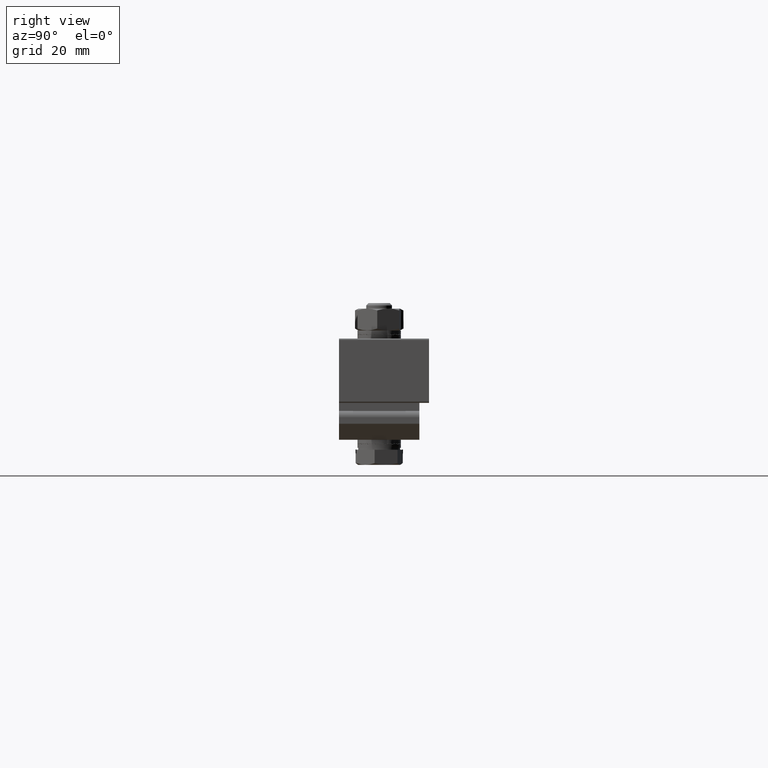
[diagram: clean part render]
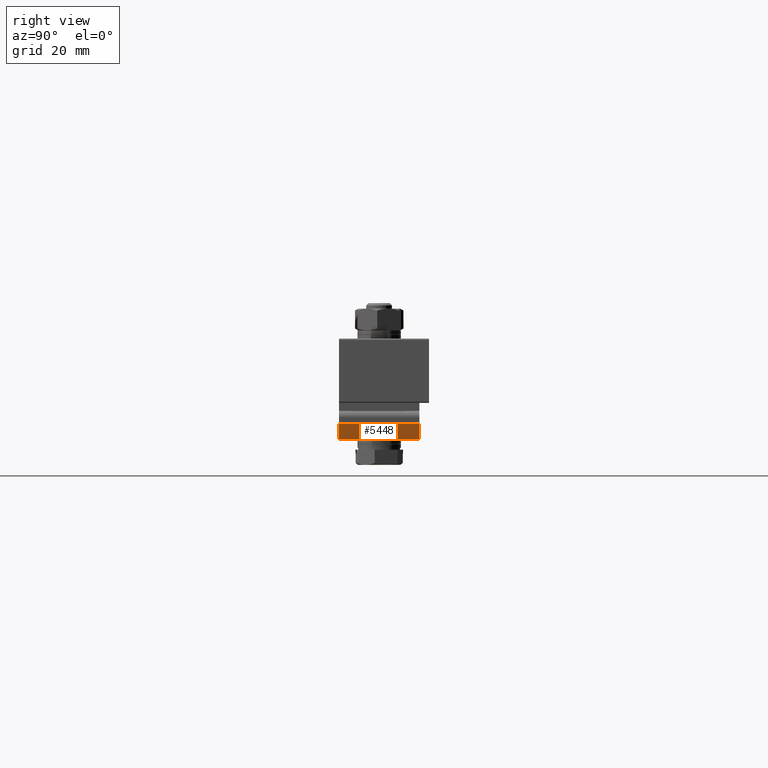
[diagram: same view with one face highlighted and labeled with its STEP entity id]
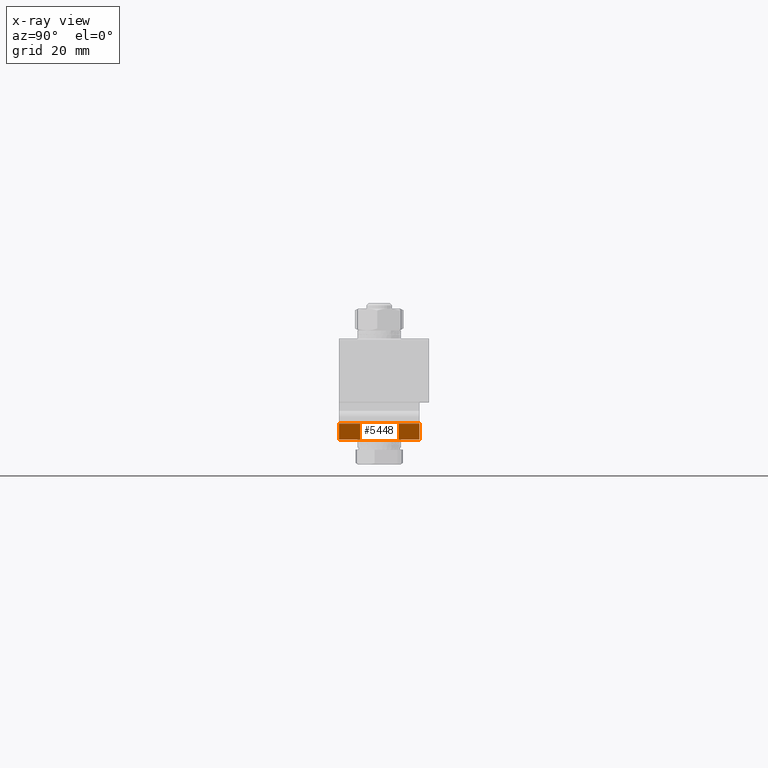
[diagram: x-ray of the same camera — body ghosted, the highlighted face saturated]
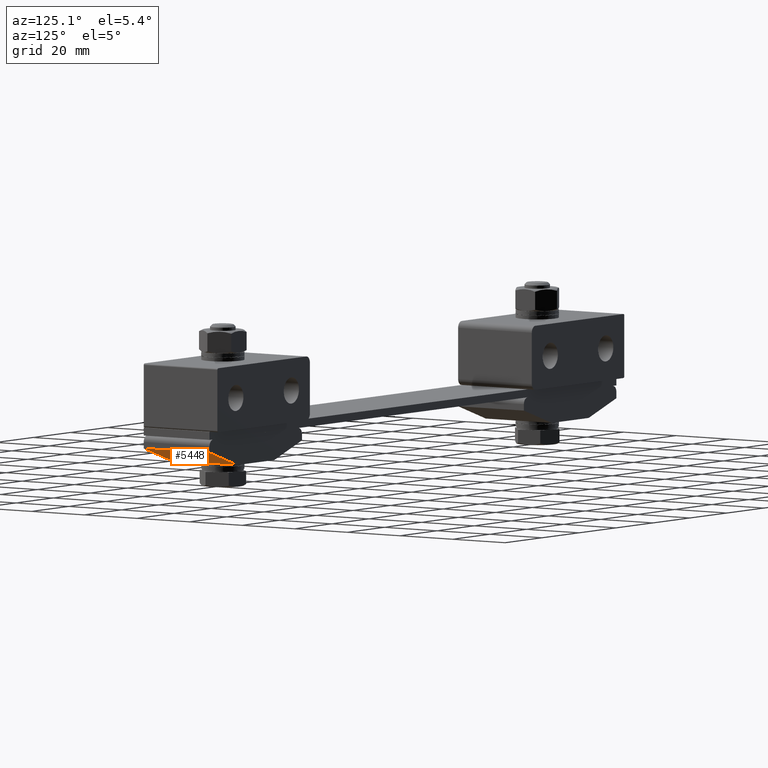
[diagram: same view with one face highlighted and labeled with its STEP entity id]
A machine part, right view. The second image highlights one B-rep face of the part: STEP entity #5448.
The next image is the same camera in x-ray: the body ghosted, the highlighted face saturated — about 0% of this face is hidden behind the body in this view.
A second angle (auxiliary view) of the same face is appended — the face is thin or edge-on in the first view.
In plain terms, the highlighted planar face has unit normal (-0.3162, 0, 0.9487).
Its self-contained STEP definition (entity closure, byte-faithful):
#394 = VECTOR ( 'NONE', #19221, 999.9999999999998900 ) ;
#746 = PLANE ( 'NONE',  #15692 ) ;
#1189 = VERTEX_POINT ( 'NONE', #8980 ) ;
#2068 = DIRECTION ( 'NONE',  ( -0.3162277660168380000, 0.0000000000000000000, 0.9486832980505138800 ) ) ;
#2187 = LINE ( 'NONE', #19984, #17880 ) ;
#3674 = DIRECTION ( 'NONE',  ( 0.9486832980505138800, 0.0000000000000000000, 0.3162277660168380000 ) ) ;
#4449 = LINE ( 'NONE', #19092, #394 ) ;
#5110 = CARTESIAN_POINT ( 'NONE',  ( 95.00000000000000000, -14.00000000000000000, -9.000000000000000000 ) ) ;
#5275 = CARTESIAN_POINT ( 'NONE',  ( 110.0000000000000000, -12.50000000000000000, -4.000000000000000000 ) ) ;
#5448 = ADVANCED_FACE ( 'NONE', ( #18952 ), #746, .F. ) ;
#5638 = EDGE_CURVE ( 'NONE', #15343, #20226, #4449, .T. ) ;
#5696 = EDGE_LOOP ( 'NONE', ( #17016, #7249, #19264, #11138 ) ) ;
#5768 = DIRECTION ( 'NONE',  ( 0.0000000000000000000, 1.000000000000000000, 0.0000000000000000000 ) ) ;
#7143 = CARTESIAN_POINT ( 'NONE',  ( 95.00000000000000000, -12.50000000000000000, -9.000000000000000000 ) ) ;
#7240 = LINE ( 'NONE', #10500, #16104 ) ;
#7249 = ORIENTED_EDGE ( 'NONE', *, *, #12933, .F. ) ;
#8151 = EDGE_CURVE ( 'NONE', #20226, #1189, #2187, .T. ) ;
#8980 = CARTESIAN_POINT ( 'NONE',  ( 110.0000000000000000, 12.50000000000000000, -4.000000000000000000 ) ) ;
#9876 = DIRECTION ( 'NONE',  ( 0.0000000000000000000, -1.000000000000000000, 0.0000000000000000000 ) ) ;
#10500 = CARTESIAN_POINT ( 'NONE',  ( 66.19999999999998900, 12.50000000000000000, -18.59999999999999800 ) ) ;
#11138 = ORIENTED_EDGE ( 'NONE', *, *, #5638, .F. ) ;
#12613 = VECTOR ( 'NONE', #9876, 1000.000000000000000 ) ;
#12933 = EDGE_CURVE ( 'NONE', #1189, #20109, #7240, .T. ) ;
#14213 = CARTESIAN_POINT ( 'NONE',  ( 95.00000000000000000, 12.50000000000000000, -9.000000000000000000 ) ) ;
#15246 = DIRECTION ( 'NONE',  ( -0.9486832980505137700, 0.0000000000000000000, -0.3162277660168380000 ) ) ;
#15343 = VERTEX_POINT ( 'NONE', #7143 ) ;
#15692 = AXIS2_PLACEMENT_3D ( 'NONE', #5110, #2068, #3674 ) ;
#16104 = VECTOR ( 'NONE', #15246, 999.9999999999998900 ) ;
#16800 = LINE ( 'NONE', #19377, #12613 ) ;
#17016 = ORIENTED_EDGE ( 'NONE', *, *, #19762, .F. ) ;
#17880 = VECTOR ( 'NONE', #5768, 1000.000000000000000 ) ;
#18952 = FACE_OUTER_BOUND ( 'NONE', #5696, .T. ) ;
#19092 = CARTESIAN_POINT ( 'NONE',  ( 66.19999999999998900, -12.50000000000000000, -18.59999999999999800 ) ) ;
#19221 = DIRECTION ( 'NONE',  ( 0.9486832980505137700, 0.0000000000000000000, 0.3162277660168380000 ) ) ;
#19264 = ORIENTED_EDGE ( 'NONE', *, *, #8151, .F. ) ;
#19377 = CARTESIAN_POINT ( 'NONE',  ( 95.00000000000000000, -12.50000000000000000, -9.000000000000000000 ) ) ;
#19762 = EDGE_CURVE ( 'NONE', #20109, #15343, #16800, .T. ) ;
#19984 = CARTESIAN_POINT ( 'NONE',  ( 110.0000000000000000, -14.00000000000000000, -4.000000000000000000 ) ) ;
#20109 = VERTEX_POINT ( 'NONE', #14213 ) ;
#20226 = VERTEX_POINT ( 'NONE', #5275 ) ;